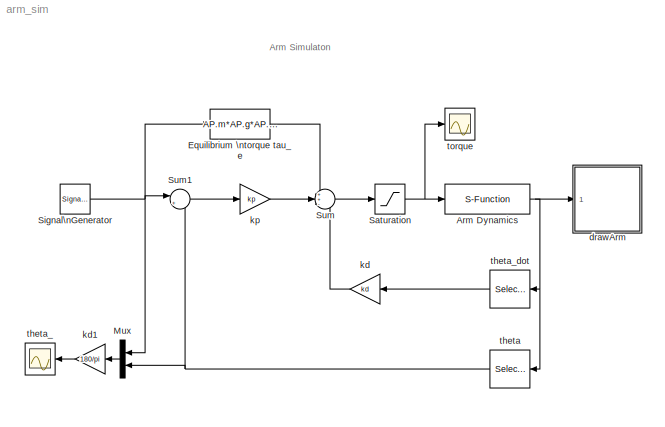
MODEL arm_sim
KIND model
BLOCK [S-Function] Arm Dynamics
  EnableBusSupport = off
  FunctionName = arm_dynamics
  Parameters = AP
  Ports = [1, 1]
  SID = 11
BLOCK [Fcn] Equilibrium \ntorque tau_e
  Expr = AP.m*AP.g*AP.ell/2*cos(u)
  SID = 25
BLOCK [Mux] Mux
  DisplayOption = bar
  Inputs = 2
  Ports = [2, 1]
  SID = 23
BLOCK [Saturate] Saturation
  InputPortMap = u0
  LowerLimit = -1
  Ports = [1, 1]
  SID = 17
  UpperLimit = 1
BLOCK [SignalGenerator] Signal\nGenerator
  Amplitude = 25*pi/180
  Frequency = .05
  Ports = [0, 1]
  SID = 15
  WaveForm = square
BLOCK [Sum] Sum
  IconShape = round
  InputSameDT = off
  Inputs = ++-
  OutDataTypeStr = Inherit: Inherit via internal rule
  Ports = [3, 1]
  SID = 14
  SaturateOnIntegerOverflow = off
BLOCK [Sum] Sum1
  IconShape = round
  InputSameDT = off
  Inputs = |+-
  OutDataTypeStr = Inherit: Inherit via internal rule
  Ports = [2, 1]
  SID = 19
  SaturateOnIntegerOverflow = off
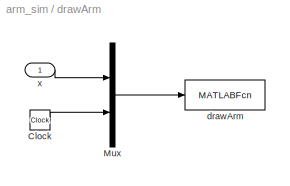
BLOCK [SubSystem] drawArm
  FunctionWithSeparateData = off
  MaskDisplay = image(imread('tv.jpg'))
  MaskHideContents = off
  MaskIconFrame = on
  MaskIconOpaque = on
  MaskIconRotate = none
  MaskIconUnits = autoscale
  MaskInitialization = % drawing parameters\nL = 1;\nw = 0.3;\n
  MaskPortRotate = default
  MinAlgLoopOccurrences = off
  Opaque = off
  Ports = [1]
  PropExecContextOutsideSubsystem = off
  RTWSystemCode = Auto
  RequestExecContextInheritance = off
  SID = 4
BLOCK [Clock] drawArm/Clock
  Decimation = 10
  SID = 6
BLOCK [Mux] drawArm/Mux
  DisplayOption = bar
  Inputs = 2
  Ports = [2, 1]
  SID = 7
BLOCK [MATLABFcn] drawArm/drawArm
  MATLABFcn = drawArm(u,L,w)
  OutputDimensions = 0
  Ports = [1]
  SID = 8
  SampleTime = 0.1
BLOCK [Inport] drawArm/x
  IconDisplay = Port number
  SID = 5
BLOCK [Gain] kd
  Gain = kd
  OutDataTypeStr = Inherit: Inherit via internal rule
  ParamDataTypeStr = Inherit: Inherit via internal rule
  SID = 18
  SaturateOnIntegerOverflow = off
BLOCK [Gain] kd1
  Gain = 180/pi
  OutDataTypeStr = Inherit: Inherit via internal rule
  ParamDataTypeStr = Inherit: Inherit via internal rule
  SID = 27
  SaturateOnIntegerOverflow = off
BLOCK [Gain] kp
  Gain = kp
  OutDataTypeStr = Inherit: Inherit via internal rule
  ParamDataTypeStr = Inherit: Inherit via internal rule
  SID = 13
  SaturateOnIntegerOverflow = off
BLOCK [Selector] theta
  IndexOptions = Index vector (dialog)
  Indices = [1]
  InputPortWidth = 2
  OutputSizes = 1
  Ports = [1, 1]
  SID = 21
BLOCK [Scope] theta_
  DataFormat = StructureWithTime
  Floating = off
  NumInputPorts = 1
  Ports = [1]
  SID = 22
  SampleTime = 0
  SaveName = ScopeData1
  YMax = 27.5
  YMin = -30
BLOCK [Selector] theta_dot
  IndexOptions = Index vector (dialog)
  Indices = [2]
  InputPortWidth = 2
  OutputSizes = 1
  Ports = [1, 1]
  SID = 20
BLOCK [Scope] torque
  DataFormat = StructureWithTime
  Floating = off
  NumInputPorts = 1
  Ports = [1]
  SID = 16
  SampleTime = 0
  YMax = 1
  YMin = -0.8
ANNOTATION (root): Arm Simulaton
NET Arm Dynamics:1 -> drawArm:1, theta:1, theta_dot:1
LINE Equilibrium \ntorque tau_e:1 -> Sum:1
LINE Mux:1 -> kd1:1
NET Saturation:1 -> Arm Dynamics:1, torque:1
NET Signal\nGenerator:1 -> Equilibrium \ntorque tau_e:1, Mux:1, Sum1:1
LINE Sum1:1 -> kp:1
LINE Sum:1 -> Saturation:1
LINE drawArm/Clock:1 -> drawArm/Mux:2
LINE drawArm/Mux:1 -> drawArm/drawArm:1
LINE drawArm/x:1 -> drawArm/Mux:1
LINE kd1:1 -> theta_:1
LINE kd:1 -> Sum:3
LINE kp:1 -> Sum:2
NET theta:1 -> Mux:2, Sum1:2
LINE theta_dot:1 -> kd:1
note: NET lines group one-source signal fan-out (src -> all destinations, sorted); 1:1 wires keep LINE
